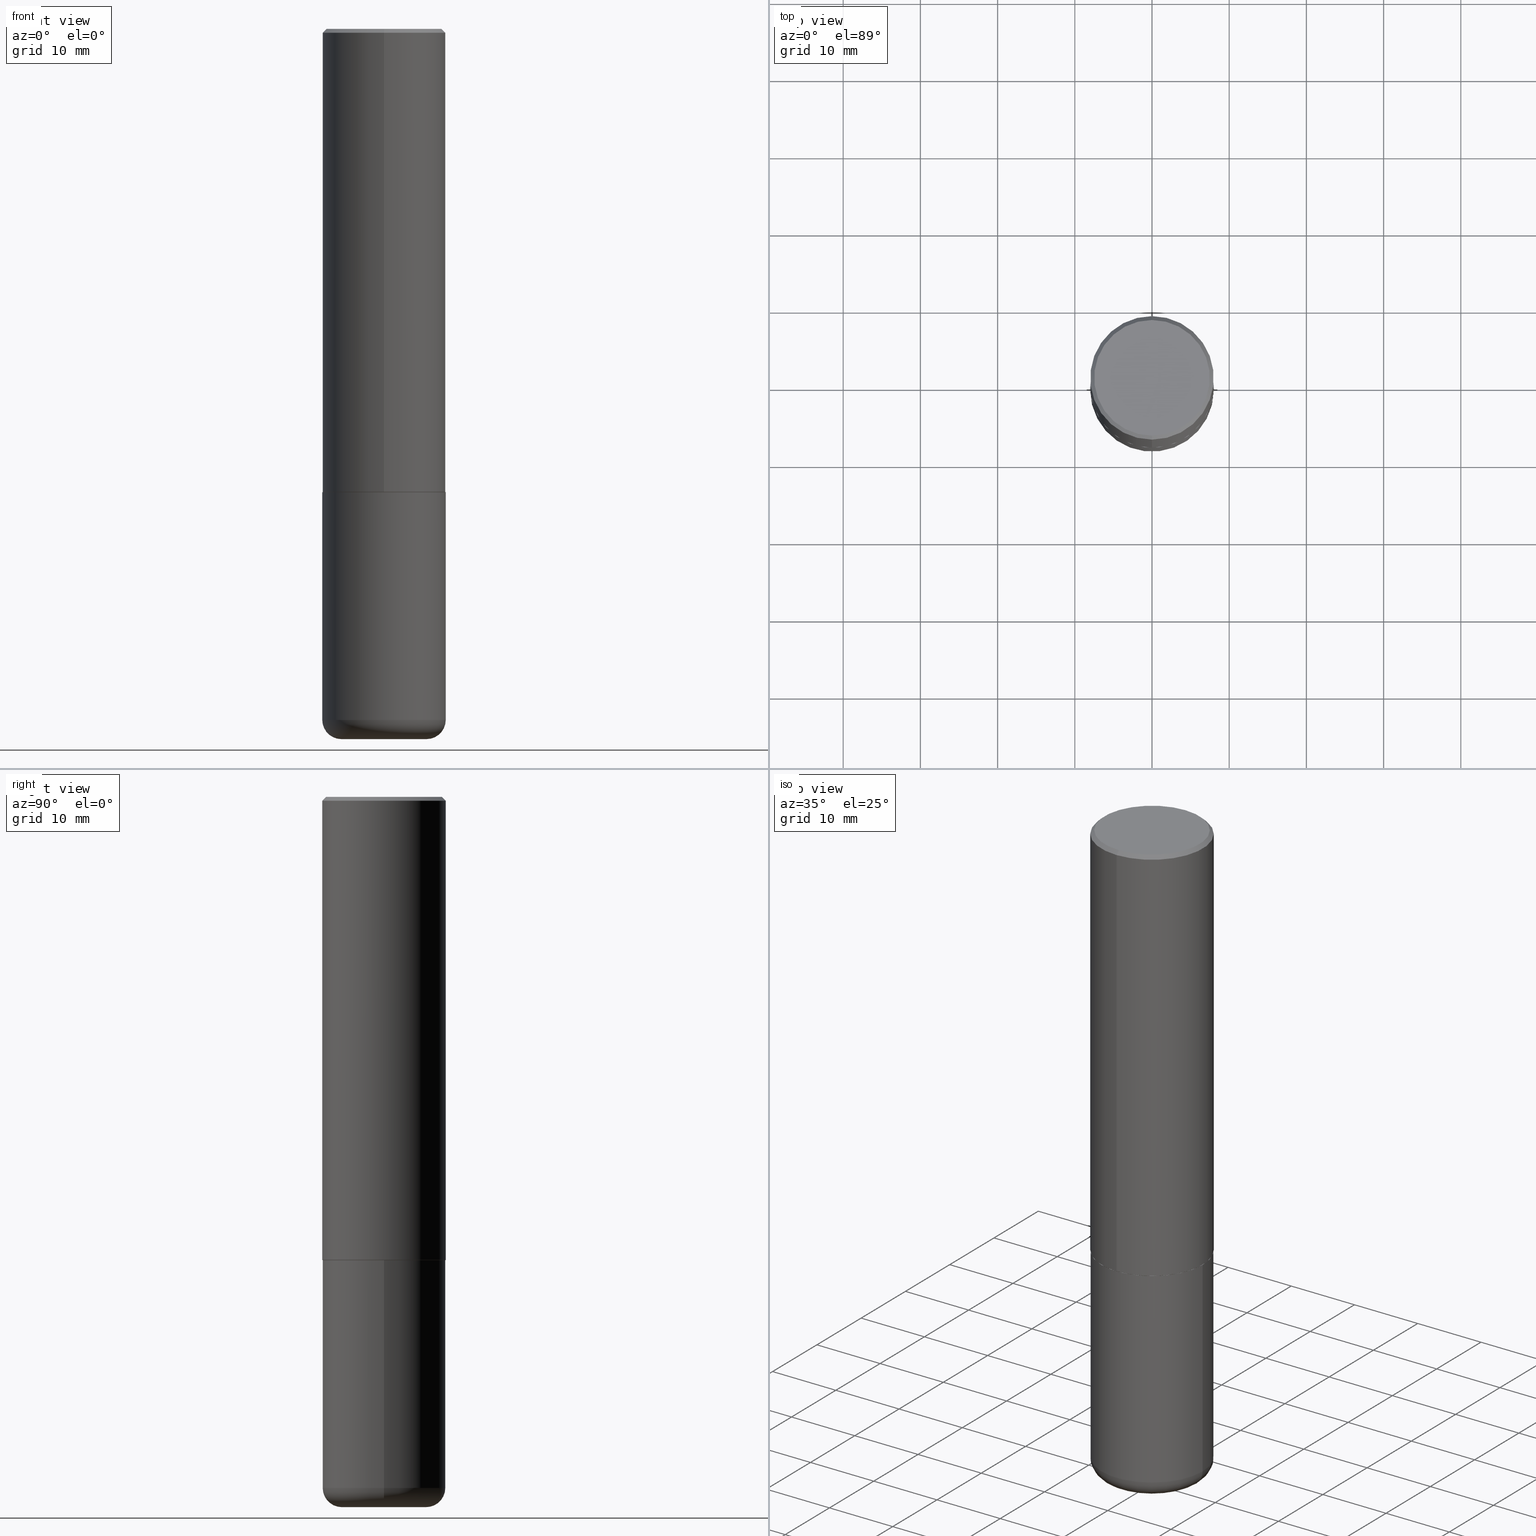
[diagram: canonical four-view strip — front | top / right | iso, engineering-drawing reading convention]
A machine part, canonical four-view strip (front | top / right | iso — engineering-drawing reading convention). The complete STEP part file that produces these views, byte-faithful:
ISO-10303-21;
HEADER;
FILE_DESCRIPTION (( 'STEP AP203' ),
    '1' );
FILE_NAME ('46644.STEP',
    '2024-03-05T02:18:11',
    ( '' ),
    ( '' ),
    'SwSTEP 2.0',
    'SolidWorks 2023',
    '' );
FILE_SCHEMA (( 'CONFIG_CONTROL_DESIGN' ));
ENDSEC;

DATA;
#1 = ORIENTED_EDGE ( 'NONE', *, *, #44, .T. ) ;
#2 = MECHANICAL_CONTEXT ( 'NONE', #51, 'mechanical' ) ;
#3 = CARTESIAN_POINT ( 'NONE',  ( 5.779911596607626742E-29, -8.242958573512960510E-15, -2.362200000000000077 ) ) ;
#4 = DATE_AND_TIME ( #293, #227 ) ;
#5 = DIRECTION ( 'NONE',  ( -2.445468806185136597E-29, 3.491481338843145583E-15, 1.000000000000000000 ) ) ;
#6 = APPROVAL_STATUS ( 'not_yet_approved' ) ;
#7 = DIRECTION ( 'NONE',  ( 1.000000000000000000, -6.982962677686266711E-15, 4.876176775795936353E-29 ) ) ;
#8 = DATE_AND_TIME ( #327, #299 ) ;
#9 = EDGE_CURVE ( 'NONE', #313, #277, #93, .T. ) ;
#10 = DIRECTION ( 'NONE',  ( 1.000000000000000000, -6.982962677686266711E-15, 4.876176775795936353E-29 ) ) ;
#11 = EDGE_CURVE ( 'NONE', #65, #242, #149, .T. ) ;
#12 = CC_DESIGN_APPROVAL ( #215, ( #395 ) ) ;
#13 = DIRECTION ( 'NONE',  ( -6.982962677686266711E-15, -1.000000000000000000, 3.480615376543096919E-15 ) ) ;
#14 = AXIS2_PLACEMENT_3D ( 'NONE', #130, #226, #355 ) ;
#15 = ORIENTED_EDGE ( 'NONE', *, *, #62, .T. ) ;
#16 = FACE_OUTER_BOUND ( 'NONE', #94, .T. ) ;
#17 = ORIENTED_EDGE ( 'NONE', *, *, #296, .T. ) ;
#18 = EDGE_CURVE ( 'NONE', #411, #366, #121, .T. ) ;
#19 =( LENGTH_UNIT ( ) NAMED_UNIT ( * ) SI_UNIT ( $, .METRE. ) );
#20 = ORIENTED_EDGE ( 'NONE', *, *, #267, .F. ) ;
#21 = VECTOR ( 'NONE', #153, 39.37007874015748143 ) ;
#22 = ORIENTED_EDGE ( 'NONE', *, *, #136, .T. ) ;
#23 = CARTESIAN_POINT ( 'NONE',  ( -2.199284095337233467E-15, -0.3149500000000085564, -2.361199999999998411 ) ) ;
#24 = VERTEX_POINT ( 'NONE', #219 ) ;
#25 = APPLICATION_PROTOCOL_DEFINITION ( 'international standard', 'config_control_design', 1994, #51 ) ;
#26 = ADVANCED_FACE ( 'NONE', ( #125 ), #254, .T. ) ;
#27 = ORIENTED_EDGE ( 'NONE', *, *, #168, .F. ) ;
#28 = DIRECTION ( 'NONE',  ( 5.024295867787889629E-15, 0.7071067811865257013, 0.7071067811865691111 ) ) ;
#29 = FACE_OUTER_BOUND ( 'NONE', #367, .T. ) ;
#30 = ORIENTED_EDGE ( 'NONE', *, *, #281, .T. ) ;
#31 = PRODUCT_RELATED_PRODUCT_CATEGORY ( 'detail', '', ( #76 ) ) ;
#32 = DATE_AND_TIME ( #225, #292 ) ;
#33 = DIRECTION ( 'NONE',  ( -2.446834136232167376E-29, 3.489526108506037109E-15, 1.000000000000000000 ) ) ;
#34 = APPROVAL_STATUS ( 'not_yet_approved' ) ;
#35 = VERTEX_POINT ( 'NONE', #380 ) ;
#36 = AXIS2_PLACEMENT_3D ( 'NONE', #326, #154, #347 ) ;
#37 = CONICAL_SURFACE ( 'NONE', #278, 0.3149500000000000077, 0.7853981633974471688 ) ;
#38 = DIRECTION ( 'NONE',  ( -2.446834136232167376E-29, 3.489526108506037109E-15, 1.000000000000000000 ) ) ;
#39 = PERSON_AND_ORGANIZATION ( #405, #238 ) ;
#40 = EDGE_CURVE ( 'NONE', #366, #313, #224, .T. ) ;
#41 = DESIGN_CONTEXT ( 'detailed design', #266, 'design' ) ;
#42 = VECTOR ( 'NONE', #73, 39.37007874015748143 ) ;
#43 = AXIS2_PLACEMENT_3D ( 'NONE', #110, #335, #10 ) ;
#44 = EDGE_CURVE ( 'NONE', #162, #172, #48, .T. ) ;
#45 = CARTESIAN_POINT ( 'NONE',  ( -0.3149500000000000077, 2.237854346276435590E-15, -1.549218606675782676E-29 ) ) ;
#46 = CARTESIAN_POINT ( 'NONE',  ( 0.000000000000000000, 0.000000000000000000, 0.000000000000000000 ) ) ;
#47 = EDGE_LOOP ( 'NONE', ( #17, #15 ) ) ;
#48 = CIRCLE ( 'NONE', #269, 0.2949499999999999345 ) ;
#49 = DIRECTION ( 'NONE',  ( 1.000000000000000000, -6.982962677686264344E-15, 0.000000000000000000 ) ) ;
#50 = ORIENTED_EDGE ( 'NONE', *, *, #40, .F. ) ;
#51 = APPLICATION_CONTEXT ( 'configuration controlled 3d designs of mechanical parts and assemblies' ) ;
#52 = FACE_OUTER_BOUND ( 'NONE', #272, .T. ) ;
#53 = ORIENTED_EDGE ( 'NONE', *, *, #281, .F. ) ;
#54 = CARTESIAN_POINT ( 'NONE',  ( 8.616853885473946211E-29, -1.230258364554770589E-14, -3.523599999999999621 ) ) ;
#55 = DIRECTION ( 'NONE',  ( 2.446834136232167096E-29, -3.489526108506037109E-15, -1.000000000000000000 ) ) ;
#56 = EDGE_CURVE ( 'NONE', #24, #35, #127, .T. ) ;
#57 = CARTESIAN_POINT ( 'NONE',  ( -2.192301132659545875E-15, -0.3139500000000082780, -2.362199999999998745 ) ) ;
#58 = CARTESIAN_POINT ( 'NONE',  ( 2.237854346276465567E-15, 0.3149499999999920141, -2.361200000000000632 ) ) ;
#59 = DIRECTION ( 'NONE',  ( -6.982962677686264344E-15, -1.000000000000000000, 3.489526108506037109E-15 ) ) ;
#60 = CALENDAR_DATE ( 2024, 4, 3 ) ;
#61 = APPROVAL_PERSON_ORGANIZATION ( #290, #200, #131 ) ;
#62 = EDGE_CURVE ( 'NONE', #151, #35, #247, .T. ) ;
#63 = DIRECTION ( 'NONE',  ( -6.982962677686266711E-15, -1.000000000000000000, 3.480615376543096919E-15 ) ) ;
#64 = CIRCLE ( 'NONE', #382, 0.3149500000000002853 ) ;
#65 = VERTEX_POINT ( 'NONE', #57 ) ;
#66 = SECURITY_CLASSIFICATION_LEVEL ( 'unclassified' ) ;
#67 = DIRECTION ( 'NONE',  ( 1.000000000000000000, -6.982962677686264344E-15, 0.000000000000000000 ) ) ;
#68 = DIRECTION ( 'NONE',  ( 0.000000000000000000, 0.000000000000000000, 1.000000000000000000 ) ) ;
#69 = CARTESIAN_POINT ( 'NONE',  ( -0.3149499999999999522, -1.006472929927126990E-14, -3.523599999999999621 ) ) ;
#70 = AXIS2_PLACEMENT_3D ( 'NONE', #318, #385, #322 ) ;
#71 = AXIS2_PLACEMENT_3D ( 'NONE', #90, #276, #310 ) ;
#72 = CLOSED_SHELL ( 'NONE', ( #191, #314, #171, #384, #26, #415, #100, #363 ) ) ;
#73 = DIRECTION ( 'NONE',  ( -4.851104656540957964E-15, -0.7071067811865491270, -0.7071067811865459074 ) ) ;
#74 = DIRECTION ( 'NONE',  ( 1.000000000000000000, -6.982962677686269866E-15, 0.000000000000000000 ) ) ;
#75 = CARTESIAN_POINT ( 'NONE',  ( 0.2165500000000000203, -1.381474421340066671E-14, -3.523599999999999621 ) ) ;
#76 = PRODUCT ( '46644', '46644', '', ( #2 ) ) ;
#77 = EDGE_LOOP ( 'NONE', ( #122, #316, #20, #233 ) ) ;
#78 = CONICAL_SURFACE ( 'NONE', #71, 0.3139500000000000068, 0.7853981633974141952 ) ;
#79 = LINE ( 'NONE', #45, #350 ) ;
#80 = EDGE_CURVE ( 'NONE', #84, #418, #390, .T. ) ;
#81 = AXIS2_PLACEMENT_3D ( 'NONE', #169, #167, #49 ) ;
#82 = ORIENTED_EDGE ( 'NONE', *, *, #168, .T. ) ;
#83 = ORIENTED_EDGE ( 'NONE', *, *, #178, .F. ) ;
#84 = VERTEX_POINT ( 'NONE', #252 ) ;
#85 = DIRECTION ( 'NONE',  ( 1.000000000000000000, -6.982962677686266711E-15, 0.000000000000000000 ) ) ;
#86 = VECTOR ( 'NONE', #184, 39.37007874015748143 ) ;
#87 = CARTESIAN_POINT ( 'NONE',  ( 2.199284095337289871E-15, 0.3149499999999999522, -0.02000000000000116615 ) ) ;
#88 = DIRECTION ( 'NONE',  ( -6.982962677686264344E-15, -1.000000000000000000, 3.489526108506037109E-15 ) ) ;
#89 = CARTESIAN_POINT ( 'NONE',  ( 8.616853885473946211E-29, -1.230258364554770589E-14, -3.523599999999999621 ) ) ;
#90 = CARTESIAN_POINT ( 'NONE',  ( 5.779911596607626742E-29, -8.242958573512960510E-15, -2.362200000000000077 ) ) ;
#91 = DIRECTION ( 'NONE',  ( -6.982962677686265922E-15, -1.000000000000000000, 3.483117034309591132E-15 ) ) ;
#92 = DATE_TIME_ROLE ( 'creation_date' ) ;
#93 = CIRCLE ( 'NONE', #397, 0.3149500000000000077 ) ;
#94 = EDGE_LOOP ( 'NONE', ( #362, #30, #311, #222 ) ) ;
#95 = CIRCLE ( 'NONE', #221, 0.3149500000000000077 ) ;
#96 = CALENDAR_DATE ( 2024, 4, 3 ) ;
#97 = CARTESIAN_POINT ( 'NONE',  ( 0.000000000000000000, 0.000000000000000000, 0.000000000000000000 ) ) ;
#98 = COORDINATED_UNIVERSAL_TIME_OFFSET ( 5, 0, .BEHIND. ) ;
#99 = LINE ( 'NONE', #301, #304 ) ;
#100 = ADVANCED_FACE ( 'NONE', ( #29 ), #246, .F. ) ;
#101 = CC_DESIGN_SECURITY_CLASSIFICATION ( #359, ( #395 ) ) ;
#102 = AXIS2_PLACEMENT_3D ( 'NONE', #89, #217, #74 ) ;
#103 = AXIS2_PLACEMENT_3D ( 'NONE', #280, #249, #377 ) ;
#104 = APPROVAL_DATE_TIME ( #8, #200 ) ;
#105 = CC_DESIGN_DATE_AND_TIME_ASSIGNMENT ( #4, #128, ( #359 ) ) ;
#106 = UNCERTAINTY_MEASURE_WITH_UNIT (LENGTH_MEASURE( 1.000000000000000082E-05 ), #241, 'distance_accuracy_value', 'NONE');
#107 = CARTESIAN_POINT ( 'NONE',  ( 5.779911596607626742E-29, -8.242958573512960510E-15, -2.362200000000000077 ) ) ;
#108 = CARTESIAN_POINT ( 'NONE',  ( 5.777464762471393692E-29, -8.239469047404454280E-15, -2.361199999999999743 ) ) ;
#109 = ORIENTED_EDGE ( 'NONE', *, *, #56, .F. ) ;
#110 = CARTESIAN_POINT ( 'NONE',  ( 0.000000000000000000, 0.000000000000000000, 0.000000000000000000 ) ) ;
#111 = ORIENTED_EDGE ( 'NONE', *, *, #398, .T. ) ;
#112 = CC_DESIGN_PERSON_AND_ORGANIZATION_ASSIGNMENT ( #220, #330, ( #359 ) ) ;
#113 = DIRECTION ( 'NONE',  ( -6.982962677686265922E-15, -1.000000000000000000, 3.483117034309591132E-15 ) ) ;
#114 = ORIENTED_EDGE ( 'NONE', *, *, #358, .T. ) ;
#115 = CIRCLE ( 'NONE', #81, 0.2165500000000000203 ) ;
#116 = ORIENTED_EDGE ( 'NONE', *, *, #80, .T. ) ;
#117 = CARTESIAN_POINT ( 'NONE',  ( -2.160713844398143363E-15, -0.3149500000000000632, -0.01999999999999896999 ) ) ;
#118 = ORIENTED_EDGE ( 'NONE', *, *, #236, .T. ) ;
#119 = DIRECTION ( 'NONE',  ( -2.446834136232167376E-29, 3.489526108506037109E-15, 1.000000000000000000 ) ) ;
#120 = CARTESIAN_POINT ( 'NONE',  ( 2.059624841783564063E-15, 0.2949499999999999345, -1.010315767092368542E-15 ) ) ;
#121 = CIRCLE ( 'NONE', #36, 0.3149500000000002853 ) ;
#122 = ORIENTED_EDGE ( 'NONE', *, *, #11, .T. ) ;
#123 = FACE_OUTER_BOUND ( 'NONE', #235, .T. ) ;
#124 = ORIENTED_EDGE ( 'NONE', *, *, #398, .F. ) ;
#125 = FACE_OUTER_BOUND ( 'NONE', #143, .T. ) ;
#126 = APPLICATION_PROTOCOL_DEFINITION ( 'international standard', 'config_control_design', 1994, #266 ) ;
#127 = LINE ( 'NONE', #257, #86 ) ;
#128 = DATE_TIME_ROLE ( 'classification_date' ) ;
#129 = EDGE_CURVE ( 'NONE', #162, #277, #414, .T. ) ;
#130 = CARTESIAN_POINT ( 'NONE',  ( -0.2165500000000000203, -1.076390335125921037E-14, -3.523599999999999621 ) ) ;
#131 = APPROVAL_ROLE ( '' ) ;
#132 = FACE_OUTER_BOUND ( 'NONE', #47, .T. ) ;
#133 = PERSON_AND_ORGANIZATION ( #405, #238 ) ;
#134 = AXIS2_PLACEMENT_3D ( 'NONE', #75, #165, #199 ) ;
#135 = AXIS2_PLACEMENT_3D ( 'NONE', #260, #273, #333 ) ;
#136 = EDGE_CURVE ( 'NONE', #24, #239, #228, .T. ) ;
#137 = DIMENSIONAL_EXPONENTS ( 1.000000000000000000, 0.000000000000000000, 0.000000000000000000, 0.000000000000000000, 0.000000000000000000, 0.000000000000000000, 0.000000000000000000 ) ;
#138 = CARTESIAN_POINT ( 'NONE',  ( -2.092108864420428031E-15, -0.2949499999999999345, 1.067075642926828942E-15 ) ) ;
#139 = AXIS2_PLACEMENT_3D ( 'NONE', #97, #33, #59 ) ;
#140 = AXIS2_PLACEMENT_3D ( 'NONE', #120, #55, #412 ) ;
#141 = CARTESIAN_POINT ( 'NONE',  ( 5.776686413970529753E-29, -8.247577218615278049E-15, -2.362199999999999633 ) ) ;
#142 = ADVANCED_FACE ( 'NONE', ( #364 ), #201, .T. ) ;
#143 = EDGE_LOOP ( 'NONE', ( #147, #204, #210, #345 ) ) ;
#144 = CARTESIAN_POINT ( 'NONE',  ( 5.779911596607626742E-29, -8.242958573512960510E-15, -2.362200000000000077 ) ) ;
#145 = ORIENTED_EDGE ( 'NONE', *, *, #56, .T. ) ;
#146 = PLANE ( 'NONE',  #103 ) ;
#147 = ORIENTED_EDGE ( 'NONE', *, *, #307, .F. ) ;
#148 = ADVANCED_FACE ( 'NONE', ( #132 ), #360, .F. ) ;
#149 = CIRCLE ( 'NONE', #381, 0.3139500000000000068 ) ;
#150 = CIRCLE ( 'NONE', #134, 0.09839999999999986258 ) ;
#151 = VERTEX_POINT ( 'NONE', #361 ) ;
#152 = CARTESIAN_POINT ( 'NONE',  ( 2.237854346276435985E-15, 0.3149500000000001743, -1.099026247873976983E-15 ) ) ;
#153 = DIRECTION ( 'NONE',  ( -2.446834136232167657E-29, 3.489526108506037109E-15, 1.000000000000000000 ) ) ;
#154 = DIRECTION ( 'NONE',  ( -2.446834136232167376E-29, 3.489526108506037109E-15, 1.000000000000000000 ) ) ;
#155 = CC_DESIGN_APPROVAL ( #183, ( #359 ) ) ;
#156 = DIRECTION ( 'NONE',  ( 1.000000000000000000, -6.982962677686269866E-15, 0.000000000000000000 ) ) ;
#157 = AXIS2_PLACEMENT_3D ( 'NONE', #141, #271, #85 ) ;
#158 = ORIENTED_EDGE ( 'NONE', *, *, #44, .F. ) ;
#159 = EDGE_CURVE ( 'NONE', #84, #24, #150, .T. ) ;
#160 = ORIENTED_EDGE ( 'NONE', *, *, #18, .F. ) ;
#161 = CARTESIAN_POINT ( 'NONE',  ( 0.000000000000000000, 0.000000000000000000, 0.000000000000000000 ) ) ;
#162 = VERTEX_POINT ( 'NONE', #334 ) ;
#163 = PERSON_AND_ORGANIZATION_ROLE ( 'design_supplier' ) ;
#164 = CLOSED_SHELL ( 'NONE', ( #142, #320, #148, #275, #229, #354 ) ) ;
#165 = DIRECTION ( 'NONE',  ( -6.982962677686266711E-15, -1.000000000000000000, 3.491481338843145583E-15 ) ) ;
#166 = COORDINATED_UNIVERSAL_TIME_OFFSET ( 5, 0, .BEHIND. ) ;
#167 = DIRECTION ( 'NONE',  ( -2.445468806185136597E-29, 3.491481338843145583E-15, 1.000000000000000000 ) ) ;
#168 = EDGE_CURVE ( 'NONE', #418, #84, #115, .T. ) ;
#169 = CARTESIAN_POINT ( 'NONE',  ( 8.857488016002563354E-29, -1.264614540928987041E-14, -3.621999999999999442 ) ) ;
#170 = CARTESIAN_POINT ( 'NONE',  ( 2.199284095337289871E-15, 0.3149499999999999522, -0.02000000000000116615 ) ) ;
#171 = ADVANCED_FACE ( 'NONE', ( #16 ), #37, .T. ) ;
#172 = VERTEX_POINT ( 'NONE', #138 ) ;
#173 = AXIS2_PLACEMENT_3D ( 'NONE', #193, #349, #378 ) ;
#174 = DIRECTION ( 'NONE',  ( -2.445468806185136877E-29, 3.491481338843145188E-15, 1.000000000000000000 ) ) ;
#175 = ORIENTED_EDGE ( 'NONE', *, *, #136, .F. ) ;
#176 = DIRECTION ( 'NONE',  ( 6.982962677686265922E-15, 1.000000000000000000, -3.483117034309591132E-15 ) ) ;
#177 = ORIENTED_EDGE ( 'NONE', *, *, #207, .T. ) ;
#178 = EDGE_CURVE ( 'NONE', #239, #151, #79, .T. ) ;
#179 = ORIENTED_EDGE ( 'NONE', *, *, #231, .T. ) ;
#180 = DIRECTION ( 'NONE',  ( -2.446834136232167376E-29, 3.489526108506037109E-15, 1.000000000000000000 ) ) ;
#181 = CYLINDRICAL_SURFACE ( 'NONE', #198, 0.3149500000000001743 ) ;
#182 = CARTESIAN_POINT ( 'NONE',  ( -2.199284095337290265E-15, -0.3149500000000001743, 1.099026247873976983E-15 ) ) ;
#183 = APPROVAL ( #6, 'UNSPECIFIED' ) ;
#184 = DIRECTION ( 'NONE',  ( -2.445468806185136877E-29, 3.491481338843145188E-15, 1.000000000000000000 ) ) ;
#185 = TOROIDAL_SURFACE ( 'NONE', #212, 0.2165500000000000203, 0.09839999999999984870 ) ;
#186 = COORDINATED_UNIVERSAL_TIME_OFFSET ( 5, 0, .BEHIND. ) ;
#187 = AXIS2_PLACEMENT_3D ( 'NONE', #107, #303, #13 ) ;
#188 = CARTESIAN_POINT ( 'NONE',  ( 8.857488016002563354E-29, -1.264614540928987041E-14, -3.621999999999999442 ) ) ;
#189 = APPROVAL_STATUS ( 'not_yet_approved' ) ;
#190 = DIRECTION ( 'NONE',  ( -2.446834136232167376E-29, 3.489526108506037109E-15, 1.000000000000000000 ) ) ;
#191 = ADVANCED_FACE ( 'NONE', ( #237 ), #404, .T. ) ;
#192 = PERSON_AND_ORGANIZATION_ROLE ( 'creator' ) ;
#193 = CARTESIAN_POINT ( 'NONE',  ( 5.779911596607625621E-29, -8.242958573512960510E-15, -2.362199999999999633 ) ) ;
#194 = APPROVAL_DATE_TIME ( #32, #183 ) ;
#195 = CONICAL_SURFACE ( 'NONE', #248, 0.3149500000000000077, 0.7853981633974471688 ) ;
#196 = DIRECTION ( 'NONE',  ( 2.446834136232167376E-29, -3.489526108506037109E-15, -1.000000000000000000 ) ) ;
#197 = DIRECTION ( 'NONE',  ( 1.000000000000000000, 0.000000000000000000, 0.000000000000000000 ) ) ;
#198 = AXIS2_PLACEMENT_3D ( 'NONE', #218, #180, #88 ) ;
#199 = DIRECTION ( 'NONE',  ( 1.000000000000000000, -6.982962677686271444E-15, 0.000000000000000000 ) ) ;
#200 = APPROVAL ( #34, 'UNSPECIFIED' ) ;
#201 = CYLINDRICAL_SURFACE ( 'NONE', #43, 0.3149500000000000077 ) ;
#202 = ORIENTED_EDGE ( 'NONE', *, *, #80, .F. ) ;
#203 = DIRECTION ( 'NONE',  ( -6.982962677686265922E-15, -1.000000000000000000, 3.469564049740290009E-15 ) ) ;
#204 = ORIENTED_EDGE ( 'NONE', *, *, #18, .T. ) ;
#205 = CIRCLE ( 'NONE', #256, 0.3149500000000000077 ) ;
#206 = DIRECTION ( 'NONE',  ( -4.937700262164378437E-15, -0.7071067811865208164, 0.7071067811865739960 ) ) ;
#207 = EDGE_CURVE ( 'NONE', #277, #313, #95, .T. ) ;
#208 = ORIENTED_EDGE ( 'NONE', *, *, #11, .F. ) ;
#209 = FACE_OUTER_BOUND ( 'NONE', #402, .T. ) ;
#210 = ORIENTED_EDGE ( 'NONE', *, *, #40, .T. ) ;
#211 = ORIENTED_EDGE ( 'NONE', *, *, #178, .T. ) ;
#212 = AXIS2_PLACEMENT_3D ( 'NONE', #54, #286, #343 ) ;
#213 = CARTESIAN_POINT ( 'NONE',  ( -9.258800117337119194E-46, 1.320433790932734238E-31, 3.783991722297353878E-17 ) ) ;
#214 = EDGE_LOOP ( 'NONE', ( #325, #250, #179, #160 ) ) ;
#215 = APPROVAL ( #189, 'UNSPECIFIED' ) ;
#216 = DIRECTION ( 'NONE',  ( -6.982962677686267499E-15, -1.000000000000000000, 3.489526108506037503E-15 ) ) ;
#217 = DIRECTION ( 'NONE',  ( -2.445468806185136597E-29, 3.491481338843145583E-15, 1.000000000000000000 ) ) ;
#218 = CARTESIAN_POINT ( 'NONE',  ( 0.000000000000000000, 0.000000000000000000, 0.000000000000000000 ) ) ;
#219 = CARTESIAN_POINT ( 'NONE',  ( 0.3149499999999999522, -1.450186774088499734E-14, -3.523599999999999621 ) ) ;
#220 = PERSON_AND_ORGANIZATION ( #405, #238 ) ;
#221 = AXIS2_PLACEMENT_3D ( 'NONE', #401, #268, #113 ) ;
#222 = ORIENTED_EDGE ( 'NONE', *, *, #129, .F. ) ;
#223 = PERSON_AND_ORGANIZATION ( #405, #238 ) ;
#224 = LINE ( 'NONE', #182, #285 ) ;
#225 = CALENDAR_DATE ( 2024, 4, 3 ) ;
#226 = DIRECTION ( 'NONE',  ( 7.105427357601001859E-15, 1.000000000000000000, -3.491481338843145583E-15 ) ) ;
#227 = LOCAL_TIME ( 21, 18, 11.00000000000000000, #186 ) ;
#228 = CIRCLE ( 'NONE', #102, 0.3149500000000000077 ) ;
#229 = ADVANCED_FACE ( 'NONE', ( #294 ), #348, .T. ) ;
#230 = LINE ( 'NONE', #394, #42 ) ;
#231 = EDGE_CURVE ( 'NONE', #65, #366, #99, .T. ) ;
#232 = FACE_OUTER_BOUND ( 'NONE', #339, .T. ) ;
#233 = ORIENTED_EDGE ( 'NONE', *, *, #231, .F. ) ;
#234 = DIRECTION ( 'NONE',  ( 1.000000000000000000, -6.982962677686266711E-15, 4.883557194083112901E-29 ) ) ;
#235 = EDGE_LOOP ( 'NONE', ( #53, #158, #287, #177 ) ) ;
#236 = EDGE_CURVE ( 'NONE', #418, #239, #332, .T. ) ;
#237 = FACE_OUTER_BOUND ( 'NONE', #77, .T. ) ;
#238 = ORGANIZATION ( 'UNSPECIFIED', 'UNSPECIFIED', '' ) ;
#239 = VERTEX_POINT ( 'NONE', #69 ) ;
#240 = CIRCLE ( 'NONE', #187, 0.3139500000000000068 ) ;
#241 =( CONVERSION_BASED_UNIT ( 'INCH', #245 ) LENGTH_UNIT ( ) NAMED_UNIT ( #137 ) );
#242 = VERTEX_POINT ( 'NONE', #396 ) ;
#243 = DIRECTION ( 'NONE',  ( 2.446834136232167376E-29, -3.489526108506037109E-15, -1.000000000000000000 ) ) ;
#244 = ORIENTED_EDGE ( 'NONE', *, *, #296, .F. ) ;
#245 = LENGTH_MEASURE_WITH_UNIT ( LENGTH_MEASURE( 0.02539999999999999897 ), #19 );
#246 = PLANE ( 'NONE',  #173 ) ;
#247 = CIRCLE ( 'NONE', #70, 0.3149500000000000077 ) ;
#248 = AXIS2_PLACEMENT_3D ( 'NONE', #346, #243, #176 ) ;
#249 = DIRECTION ( 'NONE',  ( 2.438088387897960049E-29, -3.491481338843145188E-15, -1.000000000000000000 ) ) ;
#250 = ORIENTED_EDGE ( 'NONE', *, *, #288, .T. ) ;
#251 = DIRECTION ( 'NONE',  ( -2.445468806185136597E-29, 3.491481338843145583E-15, 1.000000000000000000 ) ) ;
#252 = CARTESIAN_POINT ( 'NONE',  ( 0.2165500000000000203, -1.415830597714283123E-14, -3.621999999999999442 ) ) ;
#253 = CC_DESIGN_PERSON_AND_ORGANIZATION_ASSIGNMENT ( #223, #163, ( #395 ) ) ;
#254 = CYLINDRICAL_SURFACE ( 'NONE', #139, 0.3149500000000001743 ) ;
#255 = APPROVAL_ROLE ( '' ) ;
#256 = AXIS2_PLACEMENT_3D ( 'NONE', #410, #251, #156 ) ;
#257 = CARTESIAN_POINT ( 'NONE',  ( 0.3149500000000000077, -2.199284095337289871E-15, 1.535751875536930130E-29 ) ) ;
#258 = PRODUCT_DEFINITION_SHAPE ( 'NONE', 'NONE',  #403 ) ;
#259 = PERSON_AND_ORGANIZATION ( #405, #238 ) ;
#260 = CARTESIAN_POINT ( 'NONE',  ( 5.776686413970529753E-29, -8.247577218615278049E-15, -2.362199999999999633 ) ) ;
#261 = DATE_AND_TIME ( #96, #389 ) ;
#262 = CARTESIAN_POINT ( 'NONE',  ( 8.616853885473946211E-29, -1.230258364554770589E-14, -3.523599999999999621 ) ) ;
#263 = CC_DESIGN_PERSON_AND_ORGANIZATION_ASSIGNMENT ( #352, #386, ( #395 ) ) ;
#264 = COORDINATED_UNIVERSAL_TIME_OFFSET ( 5, 0, .BEHIND. ) ;
#265 = AXIS2_PLACEMENT_3D ( 'NONE', #46, #306, #7 ) ;
#266 = APPLICATION_CONTEXT ( 'configuration controlled 3d designs of mechanical parts and assemblies' ) ;
#267 = EDGE_CURVE ( 'NONE', #366, #411, #64, .T. ) ;
#268 = DIRECTION ( 'NONE',  ( -2.446834136232167376E-29, 3.489526108506037109E-15, 1.000000000000000000 ) ) ;
#269 = AXIS2_PLACEMENT_3D ( 'NONE', #282, #119, #291 ) ;
#270 = AXIS2_PLACEMENT_3D ( 'NONE', #213, #315, #216 ) ;
#271 = DIRECTION ( 'NONE',  ( -2.445468806185136597E-29, 3.491481338843145583E-15, 1.000000000000000000 ) ) ;
#272 = EDGE_LOOP ( 'NONE', ( #116, #118, #175, #351 ) ) ;
#273 = DIRECTION ( 'NONE',  ( 2.438088387897960049E-29, -3.491481338843145188E-15, -1.000000000000000000 ) ) ;
#274 = ORIENTED_EDGE ( 'NONE', *, *, #62, .F. ) ;
#275 = ADVANCED_FACE ( 'NONE', ( #232 ), #297, .T. ) ;
#276 = DIRECTION ( 'NONE',  ( -2.446834136232167376E-29, 3.489526108506037109E-15, 1.000000000000000000 ) ) ;
#277 = VERTEX_POINT ( 'NONE', #170 ) ;
#278 = AXIS2_PLACEMENT_3D ( 'NONE', #400, #196, #329 ) ;
#279 = ORIENTED_EDGE ( 'NONE', *, *, #236, .F. ) ;
#280 = CARTESIAN_POINT ( 'NONE',  ( 1.523889590590419512E-28, -3.507606103769704490E-15, -3.621999999999999886 ) ) ;
#281 = EDGE_CURVE ( 'NONE', #172, #313, #230, .T. ) ;
#282 = CARTESIAN_POINT ( 'NONE',  ( -9.258800117337119194E-46, 1.320433790932734238E-31, 3.783991722297353878E-17 ) ) ;
#283 = PLANE ( 'NONE',  #140 ) ;
#284 = DIRECTION ( 'NONE',  ( -2.445468806185136597E-29, 3.491481338843145583E-15, 1.000000000000000000 ) ) ;
#285 = VECTOR ( 'NONE', #353, 39.37007874015748143 ) ;
#286 = DIRECTION ( 'NONE',  ( -2.445468806185136597E-29, 3.491481338843145583E-15, 1.000000000000000000 ) ) ;
#287 = ORIENTED_EDGE ( 'NONE', *, *, #129, .T. ) ;
#288 = EDGE_CURVE ( 'NONE', #242, #65, #240, .T. ) ;
#289 = DIRECTION ( 'NONE',  ( -2.446834136232167376E-29, 3.489526108506037109E-15, 1.000000000000000000 ) ) ;
#290 = PERSON_AND_ORGANIZATION ( #405, #238 ) ;
#291 = DIRECTION ( 'NONE',  ( -6.982962677686267499E-15, -1.000000000000000000, 3.489526108506037503E-15 ) ) ;
#292 = LOCAL_TIME ( 21, 18, 11.00000000000000000, #98 ) ;
#293 = CALENDAR_DATE ( 2024, 4, 3 ) ;
#294 = FACE_OUTER_BOUND ( 'NONE', #342, .T. ) ;
#295 = APPROVAL_DATE_TIME ( #261, #215 ) ;
#296 = EDGE_CURVE ( 'NONE', #35, #151, #406, .T. ) ;
#297 = CYLINDRICAL_SURFACE ( 'NONE', #265, 0.3149500000000000077 ) ;
#298 = DATE_AND_TIME ( #60, #371 ) ;
#299 = LOCAL_TIME ( 21, 18, 11.00000000000000000, #264 ) ;
#300 = CC_DESIGN_PERSON_AND_ORGANIZATION_ASSIGNMENT ( #133, #192, ( #403 ) ) ;
#301 = CARTESIAN_POINT ( 'NONE',  ( -2.192301132659545875E-15, -0.3139500000000082780, -2.362199999999998745 ) ) ;
#302 = MANIFOLD_SOLID_BREP ( 'Body-Move/Copy2[1]', #164 ) ;
#303 = DIRECTION ( 'NONE',  ( -2.446834136232167376E-29, 3.489526108506037109E-15, 1.000000000000000000 ) ) ;
#304 = VECTOR ( 'NONE', #206, 39.37007874015748854 ) ;
#305 = ORIENTED_EDGE ( 'NONE', *, *, #267, .T. ) ;
#306 = DIRECTION ( 'NONE',  ( -2.445468806185136597E-29, 3.491481338843145583E-15, 1.000000000000000000 ) ) ;
#307 = EDGE_CURVE ( 'NONE', #411, #277, #408, .T. ) ;
#308 = EDGE_LOOP ( 'NONE', ( #1, #114 ) ) ;
#309 = MANIFOLD_SOLID_BREP ( 'Body-Move/Copy2[2]', #72 ) ;
#310 = DIRECTION ( 'NONE',  ( -6.982962677686266711E-15, -1.000000000000000000, 3.480615376543096919E-15 ) ) ;
#311 = ORIENTED_EDGE ( 'NONE', *, *, #9, .T. ) ;
#312 = FACE_OUTER_BOUND ( 'NONE', #341, .T. ) ;
#313 = VERTEX_POINT ( 'NONE', #117 ) ;
#314 = ADVANCED_FACE ( 'NONE', ( #312 ), #181, .T. ) ;
#315 = DIRECTION ( 'NONE',  ( -2.446834136232167376E-29, 3.489526108506037109E-15, 1.000000000000000000 ) ) ;
#316 = ORIENTED_EDGE ( 'NONE', *, *, #376, .T. ) ;
#317 =( NAMED_UNIT ( * ) SI_UNIT ( $, .STERADIAN. ) SOLID_ANGLE_UNIT ( ) );
#318 = CARTESIAN_POINT ( 'NONE',  ( 5.776686413970529753E-29, -8.247577218615278049E-15, -2.362199999999999633 ) ) ;
#319 = LINE ( 'NONE', #374, #392 ) ;
#320 = ADVANCED_FACE ( 'NONE', ( #52 ), #185, .T. ) ;
#321 =( GEOMETRIC_REPRESENTATION_CONTEXT ( 3 ) GLOBAL_UNCERTAINTY_ASSIGNED_CONTEXT ( ( #106 ) ) GLOBAL_UNIT_ASSIGNED_CONTEXT ( ( #241, #370, #317 ) ) REPRESENTATION_CONTEXT ( 'NONE', 'WORKASPACE' ) );
#322 = DIRECTION ( 'NONE',  ( 1.000000000000000000, -6.982962677686266711E-15, 0.000000000000000000 ) ) ;
#323 = CC_DESIGN_APPROVAL ( #200, ( #403 ) ) ;
#324 = SHAPE_DEFINITION_REPRESENTATION ( #258, #393 ) ;
#325 = ORIENTED_EDGE ( 'NONE', *, *, #376, .F. ) ;
#326 = CARTESIAN_POINT ( 'NONE',  ( 5.777464762471393692E-29, -8.239469047404454280E-15, -2.361199999999999743 ) ) ;
#327 = CALENDAR_DATE ( 2024, 4, 3 ) ;
#328 = CARTESIAN_POINT ( 'NONE',  ( 4.893668272464352339E-31, -6.979052217012096355E-17, -0.02000000000000006981 ) ) ;
#329 = DIRECTION ( 'NONE',  ( 6.982962677686265922E-15, 1.000000000000000000, -3.483117034309591132E-15 ) ) ;
#330 = PERSON_AND_ORGANIZATION_ROLE ( 'classification_officer' ) ;
#331 = CC_DESIGN_DATE_AND_TIME_ASSIGNMENT ( #298, #92, ( #403 ) ) ;
#332 = CIRCLE ( 'NONE', #14, 0.09839999999999986258 ) ;
#333 = DIRECTION ( 'NONE',  ( -1.000000000000000000, 6.982962677686265922E-15, -4.876176775795935793E-29 ) ) ;
#334 = CARTESIAN_POINT ( 'NONE',  ( 2.129454468560426967E-15, 0.2949499999999999345, -9.913958084808819386E-16 ) ) ;
#335 = DIRECTION ( 'NONE',  ( -2.445468806185136597E-29, 3.491481338843145583E-15, 1.000000000000000000 ) ) ;
#336 = CC_DESIGN_PERSON_AND_ORGANIZATION_ASSIGNMENT ( #391, #379, ( #76 ) ) ;
#337 = APPROVAL_PERSON_ORGANIZATION ( #39, #215, #255 ) ;
#338 = AXIS2_PLACEMENT_3D ( 'NONE', #144, #340, #387 ) ;
#339 = EDGE_LOOP ( 'NONE', ( #83, #111, #145, #274 ) ) ;
#340 = DIRECTION ( 'NONE',  ( -2.446834136232167376E-29, 3.489526108506037109E-15, 1.000000000000000000 ) ) ;
#341 = EDGE_LOOP ( 'NONE', ( #305, #407, #369, #50 ) ) ;
#342 = EDGE_LOOP ( 'NONE', ( #279, #82, #409, #124 ) ) ;
#343 = DIRECTION ( 'NONE',  ( 1.000000000000000000, -6.982962677686266711E-15, 4.883557194083112901E-29 ) ) ;
#344 = FACE_OUTER_BOUND ( 'NONE', #214, .T. ) ;
#345 = ORIENTED_EDGE ( 'NONE', *, *, #207, .F. ) ;
#346 = CARTESIAN_POINT ( 'NONE',  ( 4.893668272464352339E-31, -6.979052217012096355E-17, -0.02000000000000006981 ) ) ;
#347 = DIRECTION ( 'NONE',  ( -6.982962677686265922E-15, -1.000000000000000000, 3.469564049740290009E-15 ) ) ;
#348 = TOROIDAL_SURFACE ( 'NONE', #365, 0.2165500000000000203, 0.09839999999999984870 ) ;
#349 = DIRECTION ( 'NONE',  ( -2.446834136232167096E-29, 3.489526108506037109E-15, 1.000000000000000000 ) ) ;
#350 = VECTOR ( 'NONE', #174, 39.37007874015748143 ) ;
#351 = ORIENTED_EDGE ( 'NONE', *, *, #159, .F. ) ;
#352 = PERSON_AND_ORGANIZATION ( #405, #238 ) ;
#353 = DIRECTION ( 'NONE',  ( -2.446834136232167657E-29, 3.489526108506037109E-15, 1.000000000000000000 ) ) ;
#354 = ADVANCED_FACE ( 'NONE', ( #209 ), #146, .T. ) ;
#355 = DIRECTION ( 'NONE',  ( -1.000000000000000000, 7.105427357601009747E-15, 0.000000000000000000 ) ) ;
#356 = APPROVAL_PERSON_ORGANIZATION ( #259, #183, #388 ) ;
#357 = AXIS2_PLACEMENT_3D ( 'NONE', #188, #284, #67 ) ;
#358 = EDGE_CURVE ( 'NONE', #172, #162, #373, .T. ) ;
#359 = SECURITY_CLASSIFICATION ( '', '', #66 ) ;
#360 = PLANE ( 'NONE',  #135 ) ;
#361 = CARTESIAN_POINT ( 'NONE',  ( -0.3149500000000000077, -8.037226085805055984E-15, -2.362199999999999633 ) ) ;
#362 = ORIENTED_EDGE ( 'NONE', *, *, #358, .F. ) ;
#363 = ADVANCED_FACE ( 'NONE', ( #417 ), #283, .F. ) ;
#364 = FACE_OUTER_BOUND ( 'NONE', #375, .T. ) ;
#365 = AXIS2_PLACEMENT_3D ( 'NONE', #262, #5, #234 ) ;
#366 = VERTEX_POINT ( 'NONE', #23 ) ;
#367 = EDGE_LOOP ( 'NONE', ( #208, #399 ) ) ;
#368 = CARTESIAN_POINT ( 'NONE',  ( -0.2165500000000000203, -1.058609720713632398E-14, -3.621999999999999442 ) ) ;
#369 = ORIENTED_EDGE ( 'NONE', *, *, #9, .F. ) ;
#370 =( NAMED_UNIT ( * ) PLANE_ANGLE_UNIT ( ) SI_UNIT ( $, .RADIAN. ) );
#371 = LOCAL_TIME ( 21, 18, 11.00000000000000000, #166 ) ;
#372 = DIRECTION ( 'NONE',  ( 4.937700262164541731E-15, 0.7071067811865442421, -0.7071067811865507924 ) ) ;
#373 = CIRCLE ( 'NONE', #270, 0.2949499999999999345 ) ;
#374 = CARTESIAN_POINT ( 'NONE',  ( 2.230748918918891775E-15, 0.3139499999999917357, -2.362200000000000966 ) ) ;
#375 = EDGE_LOOP ( 'NONE', ( #22, #211, #244, #109 ) ) ;
#376 = EDGE_CURVE ( 'NONE', #242, #411, #319, .T. ) ;
#377 = DIRECTION ( 'NONE',  ( -1.000000000000000000, 6.982962677686265922E-15, -4.876176775795935793E-29 ) ) ;
#378 = DIRECTION ( 'NONE',  ( -6.982962677686265922E-15, -1.000000000000000000, 3.489526108506037109E-15 ) ) ;
#379 = PERSON_AND_ORGANIZATION_ROLE ( 'design_owner' ) ;
#380 = CARTESIAN_POINT ( 'NONE',  ( 0.3149500000000000077, -1.044686131395256792E-14, -2.362199999999999633 ) ) ;
#381 = AXIS2_PLACEMENT_3D ( 'NONE', #3, #190, #63 ) ;
#382 = AXIS2_PLACEMENT_3D ( 'NONE', #108, #38, #203 ) ;
#383 = COORDINATED_UNIVERSAL_TIME_OFFSET ( 5, 0, .BEHIND. ) ;
#384 = ADVANCED_FACE ( 'NONE', ( #123 ), #195, .T. ) ;
#385 = DIRECTION ( 'NONE',  ( -2.445468806185136597E-29, 3.491481338843145583E-15, 1.000000000000000000 ) ) ;
#386 = PERSON_AND_ORGANIZATION_ROLE ( 'creator' ) ;
#387 = DIRECTION ( 'NONE',  ( -6.982962677686266711E-15, -1.000000000000000000, 3.480615376543096919E-15 ) ) ;
#388 = APPROVAL_ROLE ( '' ) ;
#389 = LOCAL_TIME ( 21, 18, 11.00000000000000000, #383 ) ;
#390 = CIRCLE ( 'NONE', #357, 0.2165500000000000203 ) ;
#391 = PERSON_AND_ORGANIZATION ( #405, #238 ) ;
#392 = VECTOR ( 'NONE', #28, 39.37007874015748854 ) ;
#393 = ADVANCED_BREP_SHAPE_REPRESENTATION ( '46644', ( #302, #309, #416 ), #321 ) ;
#394 = CARTESIAN_POINT ( 'NONE',  ( -2.160713844398143363E-15, -0.3149500000000000632, -0.01999999999999896999 ) ) ;
#395 = PRODUCT_DEFINITION_FORMATION_WITH_SPECIFIED_SOURCE ( 'ANY', '', #76, .NOT_KNOWN. ) ;
#396 = CARTESIAN_POINT ( 'NONE',  ( 2.234301632597693067E-15, 0.3139499999999917357, -2.362200000000000966 ) ) ;
#397 = AXIS2_PLACEMENT_3D ( 'NONE', #328, #289, #91 ) ;
#398 = EDGE_CURVE ( 'NONE', #239, #24, #205, .T. ) ;
#399 = ORIENTED_EDGE ( 'NONE', *, *, #288, .F. ) ;
#400 = CARTESIAN_POINT ( 'NONE',  ( 4.893668272464352339E-31, -6.979052217012096355E-17, -0.02000000000000006981 ) ) ;
#401 = CARTESIAN_POINT ( 'NONE',  ( 4.893668272464352339E-31, -6.979052217012096355E-17, -0.02000000000000006981 ) ) ;
#402 = EDGE_LOOP ( 'NONE', ( #202, #27 ) ) ;
#403 = PRODUCT_DEFINITION ( 'UNKNOWN', '', #395, #41 ) ;
#404 = CONICAL_SURFACE ( 'NONE', #338, 0.3139500000000000068, 0.7853981633974141952 ) ;
#405 = PERSON ( 'UNSPECIFIED', 'UNSPECIFIED', 'UNSPECIFIED', ('UNSPECIFIED'), ('UNSPECIFIED'), ('UNSPECIFIED') ) ;
#406 = CIRCLE ( 'NONE', #157, 0.3149500000000000077 ) ;
#407 = ORIENTED_EDGE ( 'NONE', *, *, #307, .T. ) ;
#408 = LINE ( 'NONE', #152, #21 ) ;
#409 = ORIENTED_EDGE ( 'NONE', *, *, #159, .T. ) ;
#410 = CARTESIAN_POINT ( 'NONE',  ( 8.616853885473946211E-29, -1.230258364554770589E-14, -3.523599999999999621 ) ) ;
#411 = VERTEX_POINT ( 'NONE', #58 ) ;
#412 = DIRECTION ( 'NONE',  ( 6.982962677686265922E-15, 1.000000000000000000, -3.489526108506037109E-15 ) ) ;
#413 = VECTOR ( 'NONE', #372, 39.37007874015748143 ) ;
#414 = LINE ( 'NONE', #87, #413 ) ;
#415 = ADVANCED_FACE ( 'NONE', ( #344 ), #78, .T. ) ;
#416 = AXIS2_PLACEMENT_3D ( 'NONE', #161, #68, #197 ) ;
#417 = FACE_OUTER_BOUND ( 'NONE', #308, .T. ) ;
#418 = VERTEX_POINT ( 'NONE', #368 ) ;
ENDSEC;
END-ISO-10303-21;
